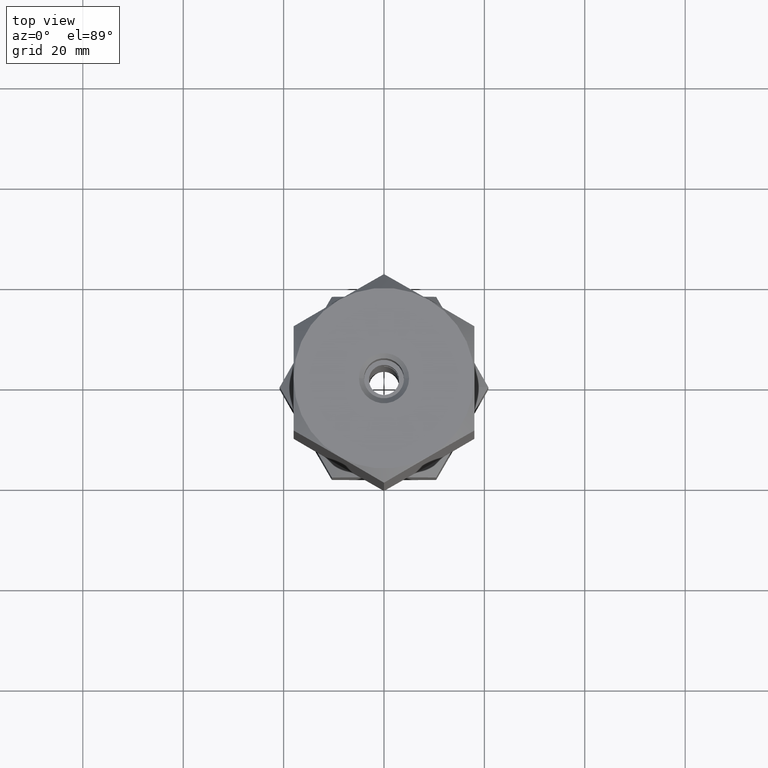
[diagram: clean part render]
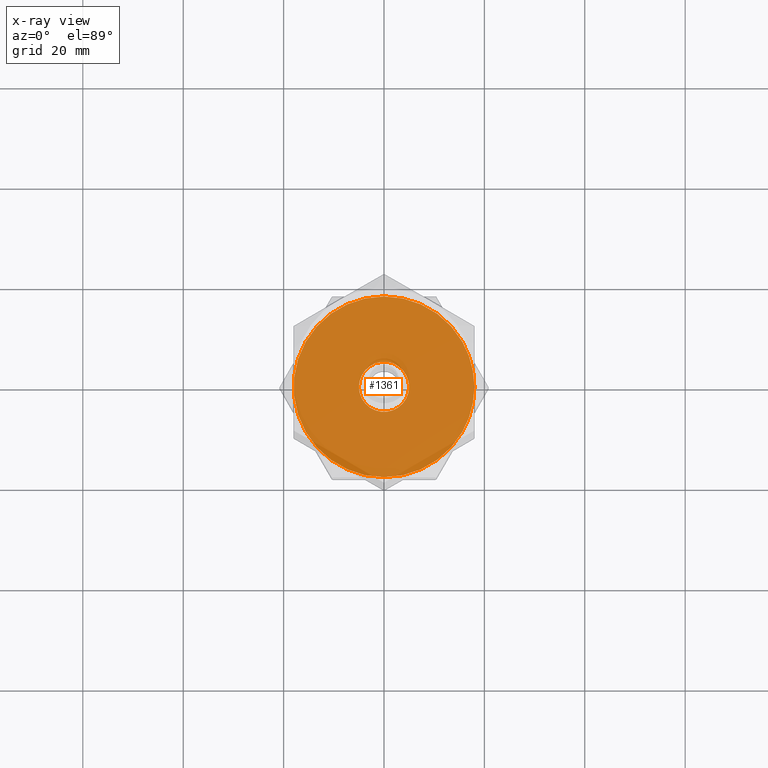
[diagram: x-ray — body ghosted, one internal face saturated and labeled with its STEP entity id]
A machine part, top view, then the same camera in x-ray: the body is ghosted and one INTERNAL B-rep face — a face not visible from any outside direction — is saturated and labeled: STEP entity #1361.
In plain terms, the highlighted planar face has unit normal (0, 0, 1).
Its self-contained STEP definition (entity closure, byte-faithful):
#13 = ORIENTED_EDGE ( 'NONE', *, *, #1584, .T. ) ;
#23 = CARTESIAN_POINT ( 'NONE',  ( 0.000000000000000000, 0.000000000000000000, 33.33333333333330017 ) ) ;
#58 = CARTESIAN_POINT ( 'NONE',  ( 18.00000000000000000, 0.000000000000000000, 33.33333333333330017 ) ) ;
#93 = EDGE_CURVE ( 'NONE', #998, #542, #522, .T. ) ;
#100 = CIRCLE ( 'NONE', #371, 18.00000000000000000 ) ;
#104 = FACE_OUTER_BOUND ( 'NONE', #2022, .T. ) ;
#105 = AXIS2_PLACEMENT_3D ( 'NONE', #964, #1938, #360 ) ;
#146 = DIRECTION ( 'NONE',  ( 1.000000000000000000, 0.000000000000000000, 0.000000000000000000 ) ) ;
#158 = CARTESIAN_POINT ( 'NONE',  ( 0.000000000000000000, 0.000000000000000000, 33.33333333333330017 ) ) ;
#192 = DIRECTION ( 'NONE',  ( 0.000000000000000000, 0.000000000000000000, 1.000000000000000000 ) ) ;
#207 = CARTESIAN_POINT ( 'NONE',  ( 5.000000000000000000, 6.123233995736766282E-16, 33.33333333333330017 ) ) ;
#253 = CARTESIAN_POINT ( 'NONE',  ( -15.58845726811989607, 8.999999999999996447, 33.33333333333330017 ) ) ;
#270 = VERTEX_POINT ( 'NONE', #814 ) ;
#360 = DIRECTION ( 'NONE',  ( 1.000000000000000000, 0.000000000000000000, 0.000000000000000000 ) ) ;
#371 = AXIS2_PLACEMENT_3D ( 'NONE', #827, #495, #1138 ) ;
#373 = CIRCLE ( 'NONE', #1528, 18.00000000000000000 ) ;
#432 = DIRECTION ( 'NONE',  ( 1.000000000000000000, 0.000000000000000000, 0.000000000000000000 ) ) ;
#446 = CARTESIAN_POINT ( 'NONE',  ( 0.000000000000000000, 0.000000000000000000, 33.33333333333330017 ) ) ;
#458 = DIRECTION ( 'NONE',  ( 1.000000000000000000, 0.000000000000000000, -0.000000000000000000 ) ) ;
#466 = CIRCLE ( 'NONE', #765, 18.00000000000000000 ) ;
#492 = AXIS2_PLACEMENT_3D ( 'NONE', #710, #1351, #1976 ) ;
#495 = DIRECTION ( 'NONE',  ( 0.000000000000000000, 0.000000000000000000, 1.000000000000000000 ) ) ;
#522 = CIRCLE ( 'NONE', #492, 18.00000000000000000 ) ;
#532 = EDGE_CURVE ( 'NONE', #1292, #1729, #466, .T. ) ;
#539 = ORIENTED_EDGE ( 'NONE', *, *, #1603, .T. ) ;
#542 = VERTEX_POINT ( 'NONE', #741 ) ;
#575 = ORIENTED_EDGE ( 'NONE', *, *, #532, .T. ) ;
#588 = DIRECTION ( 'NONE',  ( 0.000000000000000000, 0.000000000000000000, 1.000000000000000000 ) ) ;
#613 = EDGE_CURVE ( 'NONE', #1729, #270, #100, .T. ) ;
#641 = DIRECTION ( 'NONE',  ( 1.000000000000000000, 0.000000000000000000, 0.000000000000000000 ) ) ;
#710 = CARTESIAN_POINT ( 'NONE',  ( 0.000000000000000000, 0.000000000000000000, 33.33333333333330017 ) ) ;
#741 = CARTESIAN_POINT ( 'NONE',  ( 15.58845726811989429, -9.000000000000001776, 33.33333333333330017 ) ) ;
#765 = AXIS2_PLACEMENT_3D ( 'NONE', #1704, #588, #1856 ) ;
#783 = DIRECTION ( 'NONE',  ( 0.000000000000000000, 0.000000000000000000, 1.000000000000000000 ) ) ;
#794 = VERTEX_POINT ( 'NONE', #1120 ) ;
#803 = AXIS2_PLACEMENT_3D ( 'NONE', #1797, #1223, #1809 ) ;
#814 = CARTESIAN_POINT ( 'NONE',  ( 0.000000000000000000, 18.00000000000000000, 33.33333333333330017 ) ) ;
#827 = CARTESIAN_POINT ( 'NONE',  ( 0.000000000000000000, 0.000000000000000000, 33.33333333333330017 ) ) ;
#845 = VERTEX_POINT ( 'NONE', #207 ) ;
#865 = CIRCLE ( 'NONE', #1243, 5.000000000000000000 ) ;
#893 = DIRECTION ( 'NONE',  ( 0.000000000000000000, 0.000000000000000000, 1.000000000000000000 ) ) ;
#902 = CIRCLE ( 'NONE', #1491, 18.00000000000000000 ) ;
#952 = CARTESIAN_POINT ( 'NONE',  ( 3.004629197474318851E-15, -18.00000000000000000, 33.33333333333330017 ) ) ;
#964 = CARTESIAN_POINT ( 'NONE',  ( 0.000000000000000000, 0.000000000000000000, 33.33333333333330017 ) ) ;
#973 = CIRCLE ( 'NONE', #803, 5.000000000000000000 ) ;
#976 = DIRECTION ( 'NONE',  ( 0.000000000000000000, 0.000000000000000000, -1.000000000000000000 ) ) ;
#998 = VERTEX_POINT ( 'NONE', #952 ) ;
#1004 = CIRCLE ( 'NONE', #105, 18.00000000000000000 ) ;
#1048 = EDGE_LOOP ( 'NONE', ( #1564, #1389 ) ) ;
#1051 = VERTEX_POINT ( 'NONE', #1380 ) ;
#1120 = CARTESIAN_POINT ( 'NONE',  ( -15.58845726811989607, -9.000000000000003553, 33.33333333333330017 ) ) ;
#1123 = CARTESIAN_POINT ( 'NONE',  ( 0.000000000000000000, 0.000000000000000000, 33.33333333333330017 ) ) ;
#1138 = DIRECTION ( 'NONE',  ( 1.000000000000000000, 0.000000000000000000, 0.000000000000000000 ) ) ;
#1153 = ORIENTED_EDGE ( 'NONE', *, *, #613, .T. ) ;
#1208 = EDGE_CURVE ( 'NONE', #794, #998, #1622, .T. ) ;
#1223 = DIRECTION ( 'NONE',  ( 0.000000000000000000, 0.000000000000000000, -1.000000000000000000 ) ) ;
#1225 = PLANE ( 'NONE',  #1728 ) ;
#1243 = AXIS2_PLACEMENT_3D ( 'NONE', #158, #976, #1740 ) ;
#1260 = ORIENTED_EDGE ( 'NONE', *, *, #1208, .T. ) ;
#1292 = VERTEX_POINT ( 'NONE', #58 ) ;
#1351 = DIRECTION ( 'NONE',  ( 0.000000000000000000, 0.000000000000000000, 1.000000000000000000 ) ) ;
#1361 = ADVANCED_FACE ( 'NONE', ( #2039, #104 ), #1225, .T. ) ;
#1380 = CARTESIAN_POINT ( 'NONE',  ( -5.000000000000000000, 0.000000000000000000, 33.33333333333330017 ) ) ;
#1389 = ORIENTED_EDGE ( 'NONE', *, *, #1670, .T. ) ;
#1491 = AXIS2_PLACEMENT_3D ( 'NONE', #1123, #192, #641 ) ;
#1528 = AXIS2_PLACEMENT_3D ( 'NONE', #23, #783, #146 ) ;
#1560 = EDGE_CURVE ( 'NONE', #2051, #794, #902, .T. ) ;
#1564 = ORIENTED_EDGE ( 'NONE', *, *, #2052, .T. ) ;
#1584 = EDGE_CURVE ( 'NONE', #542, #1292, #1004, .T. ) ;
#1603 = EDGE_CURVE ( 'NONE', #270, #2051, #373, .T. ) ;
#1622 = CIRCLE ( 'NONE', #2029, 18.00000000000000000 ) ;
#1664 = CARTESIAN_POINT ( 'NONE',  ( 15.58845726811989252, 9.000000000000003553, 33.33333333333330017 ) ) ;
#1670 = EDGE_CURVE ( 'NONE', #845, #1051, #865, .T. ) ;
#1704 = CARTESIAN_POINT ( 'NONE',  ( 0.000000000000000000, 0.000000000000000000, 33.33333333333330017 ) ) ;
#1728 = AXIS2_PLACEMENT_3D ( 'NONE', #1846, #893, #458 ) ;
#1729 = VERTEX_POINT ( 'NONE', #1664 ) ;
#1740 = DIRECTION ( 'NONE',  ( -1.000000000000000000, 0.000000000000000000, 0.000000000000000000 ) ) ;
#1797 = CARTESIAN_POINT ( 'NONE',  ( 0.000000000000000000, 0.000000000000000000, 33.33333333333330017 ) ) ;
#1809 = DIRECTION ( 'NONE',  ( -1.000000000000000000, 0.000000000000000000, 0.000000000000000000 ) ) ;
#1846 = CARTESIAN_POINT ( 'NONE',  ( 0.000000000000000000, 0.000000000000000000, 33.33333333333330017 ) ) ;
#1850 = DIRECTION ( 'NONE',  ( 0.000000000000000000, 0.000000000000000000, 1.000000000000000000 ) ) ;
#1856 = DIRECTION ( 'NONE',  ( 1.000000000000000000, 0.000000000000000000, 0.000000000000000000 ) ) ;
#1900 = ORIENTED_EDGE ( 'NONE', *, *, #1560, .T. ) ;
#1938 = DIRECTION ( 'NONE',  ( 0.000000000000000000, 0.000000000000000000, 1.000000000000000000 ) ) ;
#1976 = DIRECTION ( 'NONE',  ( 1.000000000000000000, 0.000000000000000000, 0.000000000000000000 ) ) ;
#2016 = ORIENTED_EDGE ( 'NONE', *, *, #93, .T. ) ;
#2022 = EDGE_LOOP ( 'NONE', ( #13, #575, #1153, #539, #1900, #1260, #2016 ) ) ;
#2029 = AXIS2_PLACEMENT_3D ( 'NONE', #446, #1850, #432 ) ;
#2039 = FACE_BOUND ( 'NONE', #1048, .T. ) ;
#2051 = VERTEX_POINT ( 'NONE', #253 ) ;
#2052 = EDGE_CURVE ( 'NONE', #1051, #845, #973, .T. ) ;